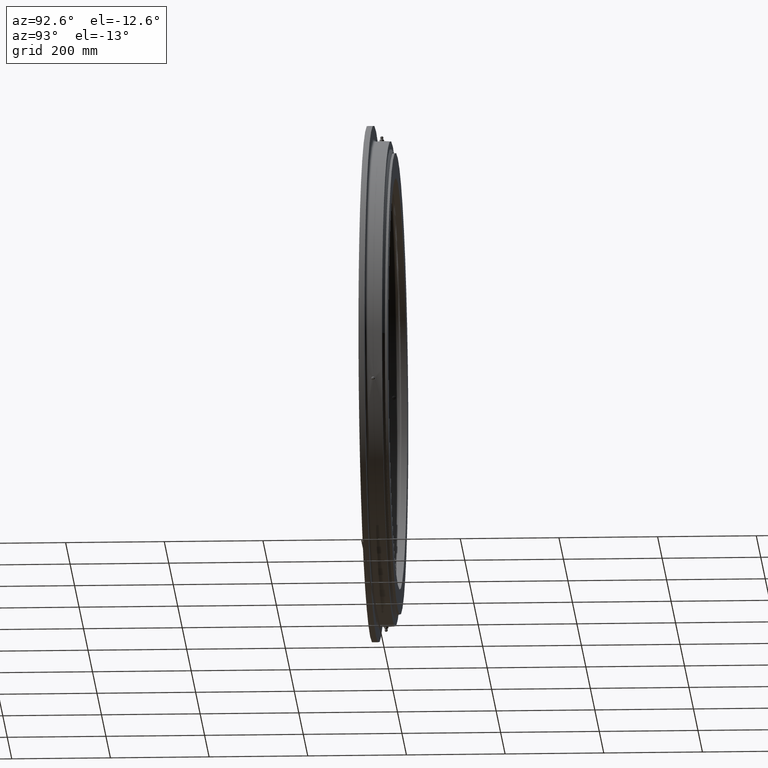
[diagram: clean part render]
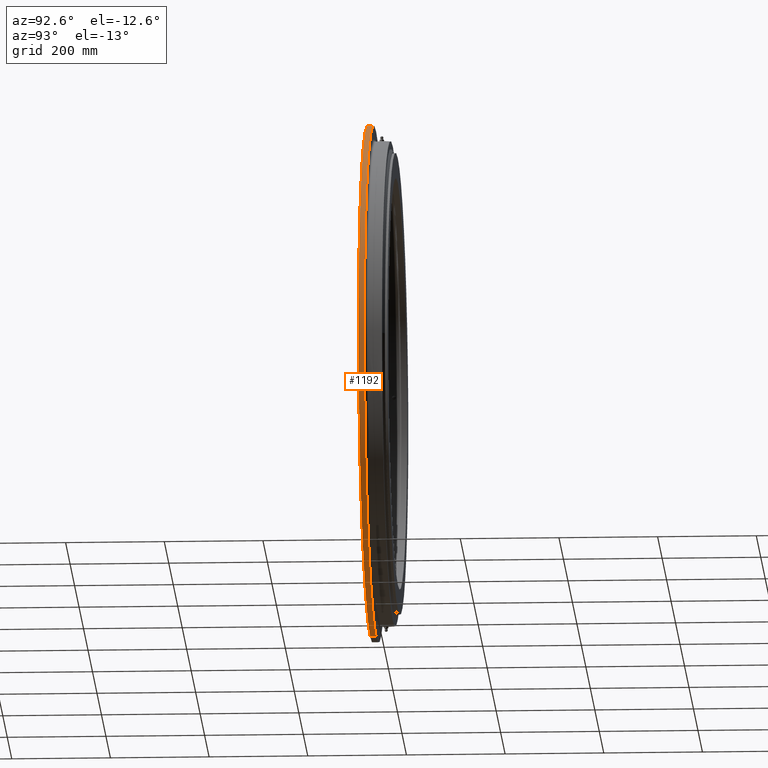
[diagram: same view with one face highlighted and labeled with its STEP entity id]
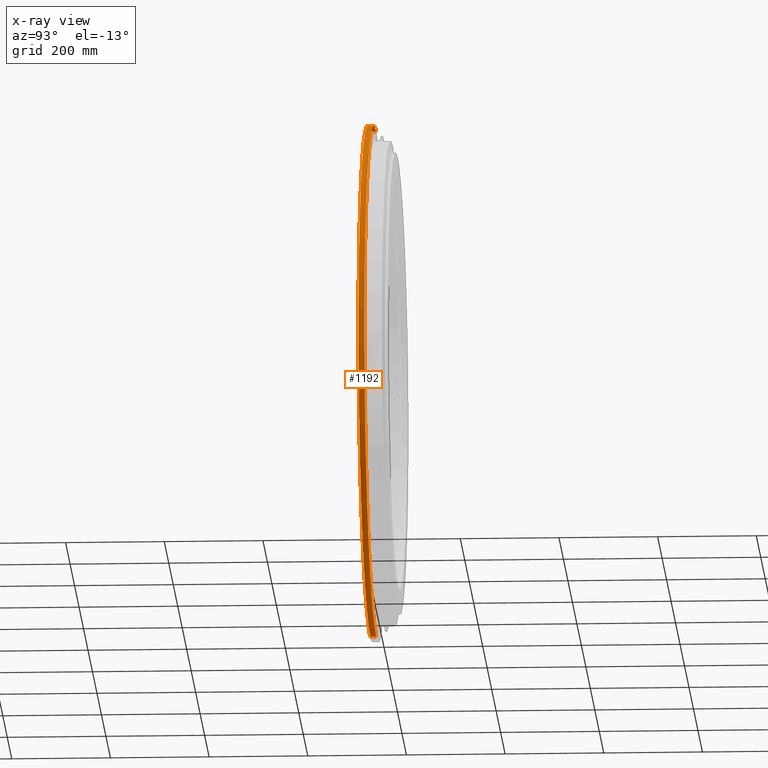
[diagram: x-ray of the same camera — body ghosted, the highlighted face saturated]
A machine part, auxiliary view. The second image highlights one B-rep face of the part: STEP entity #1192.
The next image is the same camera in x-ray: the body ghosted, the highlighted face saturated — about 0% of this face is hidden behind the body in this view.
In plain terms, the highlighted cylindrical surface (partial cylindrical patch) has radius 524 mm, axis along (-0, 1, -0).
Its self-contained STEP definition (entity closure, byte-faithful):
#132 = DIRECTION ( 'NONE',  ( -0.0000000000000000000, 1.000000000000000000, -5.904125040278464100E-017 ) ) ;
#216 = AXIS2_PLACEMENT_3D ( 'NONE', #3859, #132, #4483 ) ;
#825 = LINE ( 'NONE', #3682, #7239 ) ;
#1104 = ORIENTED_EDGE ( 'NONE', *, *, #7628, .T. ) ;
#1192 = ADVANCED_FACE ( 'NONE', ( #8045 ), #1455, .T. ) ;
#1236 = DIRECTION ( 'NONE',  ( -0.0000000000000000000, 1.000000000000000000, -0.0000000000000000000 ) ) ;
#1343 = DIRECTION ( 'NONE',  ( -0.0000000000000000000, 1.000000000000000000, -0.0000000000000000000 ) ) ;
#1395 = CIRCLE ( 'NONE', #7220, 524.0000000000000000 ) ;
#1455 = CYLINDRICAL_SURFACE ( 'NONE', #6629, 524.0000000000000000 ) ;
#1742 = EDGE_CURVE ( 'NONE', #7693, #5642, #3515, .T. ) ;
#1743 = VECTOR ( 'NONE', #6940, 1000.000000000000000 ) ;
#1842 = EDGE_LOOP ( 'NONE', ( #2907, #1104, #5696, #7561 ) ) ;
#1865 = CARTESIAN_POINT ( 'NONE',  ( 0.0000000000000000000, -16.00000000000003900, 524.0000000000000000 ) ) ;
#2099 = DIRECTION ( 'NONE',  ( 0.0000000000000000000, 0.0000000000000000000, 1.000000000000000000 ) ) ;
#2470 = CARTESIAN_POINT ( 'NONE',  ( 6.417149227532131900E-014, -16.00000000000009900, -524.0000000000000000 ) ) ;
#2907 = ORIENTED_EDGE ( 'NONE', *, *, #4472, .T. ) ;
#3225 = CARTESIAN_POINT ( 'NONE',  ( 0.0000000000000000000, 22.16364734299516900, 524.0000000000000000 ) ) ;
#3515 = CIRCLE ( 'NONE', #216, 524.0000000000000000 ) ;
#3682 = CARTESIAN_POINT ( 'NONE',  ( 6.417149227532131900E-014, 22.16364734299516900, -524.0000000000000000 ) ) ;
#3836 = CARTESIAN_POINT ( 'NONE',  ( 0.0000000000000000000, 22.16364734299516900, 0.0000000000000000000 ) ) ;
#3859 = CARTESIAN_POINT ( 'NONE',  ( 0.0000000000000000000, -16.00000000000007100, -1.883448000417030800E-015 ) ) ;
#4472 = EDGE_CURVE ( 'NONE', #6785, #4960, #1395, .T. ) ;
#4483 = DIRECTION ( 'NONE',  ( 0.0000000000000000000, 5.958973772439414300E-017, 1.000000000000000000 ) ) ;
#4960 = VERTEX_POINT ( 'NONE', #5339 ) ;
#4974 = CARTESIAN_POINT ( 'NONE',  ( 0.0000000000000000000, -28.00000000000003200, 0.0000000000000000000 ) ) ;
#5236 = LINE ( 'NONE', #3225, #1743 ) ;
#5334 = EDGE_CURVE ( 'NONE', #6785, #7693, #5236, .T. ) ;
#5339 = CARTESIAN_POINT ( 'NONE',  ( 6.417149227532131900E-014, -28.00000000000003200, -524.0000000000000000 ) ) ;
#5584 = DIRECTION ( 'NONE',  ( 0.0000000000000000000, 0.0000000000000000000, 1.000000000000000000 ) ) ;
#5642 = VERTEX_POINT ( 'NONE', #2470 ) ;
#5696 = ORIENTED_EDGE ( 'NONE', *, *, #1742, .F. ) ;
#6629 = AXIS2_PLACEMENT_3D ( 'NONE', #3836, #1343, #2099 ) ;
#6783 = DIRECTION ( 'NONE',  ( -0.0000000000000000000, 1.000000000000000000, -0.0000000000000000000 ) ) ;
#6785 = VERTEX_POINT ( 'NONE', #7449 ) ;
#6940 = DIRECTION ( 'NONE',  ( -0.0000000000000000000, 1.000000000000000000, -0.0000000000000000000 ) ) ;
#7220 = AXIS2_PLACEMENT_3D ( 'NONE', #4974, #1236, #5584 ) ;
#7239 = VECTOR ( 'NONE', #6783, 1000.000000000000000 ) ;
#7449 = CARTESIAN_POINT ( 'NONE',  ( 0.0000000000000000000, -28.00000000000003200, 524.0000000000000000 ) ) ;
#7561 = ORIENTED_EDGE ( 'NONE', *, *, #5334, .F. ) ;
#7628 = EDGE_CURVE ( 'NONE', #4960, #5642, #825, .T. ) ;
#7693 = VERTEX_POINT ( 'NONE', #1865 ) ;
#8045 = FACE_OUTER_BOUND ( 'NONE', #1842, .T. ) ;